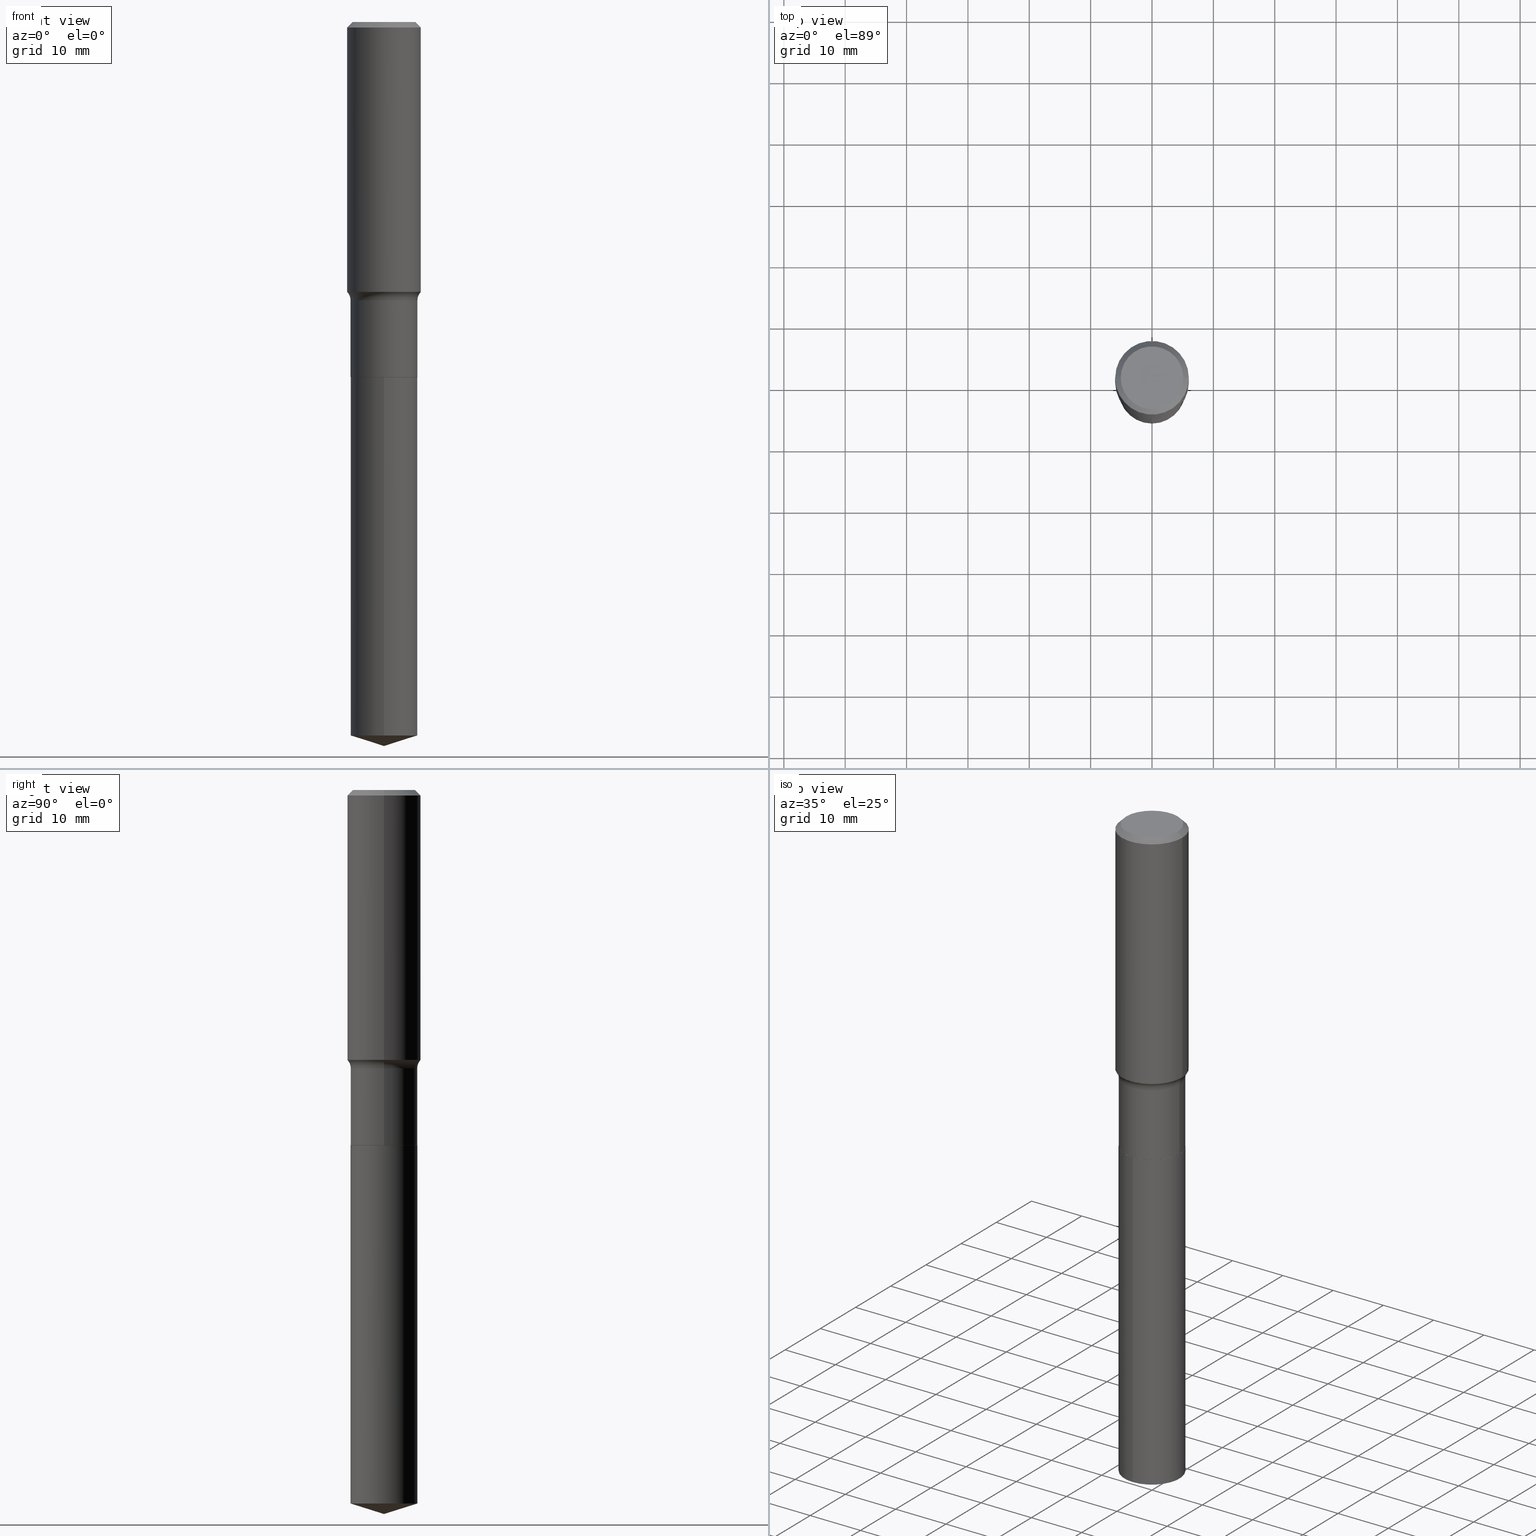
[diagram: canonical four-view strip — front | top / right | iso, engineering-drawing reading convention]
A machine part, canonical four-view strip (front | top / right | iso — engineering-drawing reading convention). The complete STEP part file that produces these views, byte-faithful:
ISO-10303-21;
HEADER;
FILE_DESCRIPTION (( 'STEP AP203' ),
    '1' );
FILE_NAME ('64183.STEP',
    '2024-04-19T15:30:27',
    ( '' ),
    ( '' ),
    'SwSTEP 2.0',
    'SolidWorks 2023',
    '' );
FILE_SCHEMA (( 'CONFIG_CONTROL_DESIGN' ));
ENDSEC;

DATA;
#1 = VECTOR ( 'NONE', #371, 39.37007874015748143 ) ;
#2 = LOCAL_TIME ( 11, 30, 27.00000000000000000, #7 ) ;
#3 = CARTESIAN_POINT ( 'NONE',  ( 0.2145499999999999630, -1.498194642497588202E-15, 1.046183727247017934E-29 ) ) ;
#4 = DIRECTION ( 'NONE',  ( 0.7071067811866199593, -2.468850131083015945E-15, 0.7071067811864750752 ) ) ;
#5 = VERTEX_POINT ( 'NONE', #217 ) ;
#6 = CARTESIAN_POINT ( 'NONE',  ( -1.498194642497532588E-15, -0.2145500000000079566, -2.279499999999998749 ) ) ;
#7 = COORDINATED_UNIVERSAL_TIME_OFFSET ( 5, 0, .BEHIND. ) ;
#8 = ORIENTED_EDGE ( 'NONE', *, *, #400, .T. ) ;
#9 = EDGE_CURVE ( 'NONE', #457, #191, #365, .T. ) ;
#10 = CARTESIAN_POINT ( 'NONE',  ( 0.000000000000000000, 0.000000000000000000, 0.000000000000000000 ) ) ;
#11 = PERSON_AND_ORGANIZATION ( #186, #308 ) ;
#12 = CARTESIAN_POINT ( 'NONE',  ( -5.008488096090115757E-47, 7.150793614331959538E-33, 2.048068690724057264E-18 ) ) ;
#13 = AXIS2_PLACEMENT_3D ( 'NONE', #483, #258, #450 ) ;
#14 = CC_DESIGN_PERSON_AND_ORGANIZATION_ASSIGNMENT ( #246, #91, ( #361 ) ) ;
#15 = CARTESIAN_POINT ( 'NONE',  ( 0.2925499999999999212, -8.278651402530973712E-15, -1.785999999999999366 ) ) ;
#16 =( NAMED_UNIT ( * ) SI_UNIT ( $, .STERADIAN. ) SOLID_ANGLE_UNIT ( ) );
#17 = EDGE_CURVE ( 'NONE', #476, #191, #239, .T. ) ;
#18 = FACE_OUTER_BOUND ( 'NONE', #418, .T. ) ;
#19 = AXIS2_PLACEMENT_3D ( 'NONE', #404, #68, #107 ) ;
#20 = CONICAL_SURFACE ( 'NONE', #301, 124.8659371009152892, 1.265363707695892126 ) ;
#21 = ORIENTED_EDGE ( 'NONE', *, *, #167, .F. ) ;
#22 = DIRECTION ( 'NONE',  ( -2.438088387897960049E-29, 3.491481338843145188E-15, 1.000000000000000000 ) ) ;
#23 = CARTESIAN_POINT ( 'NONE',  ( -0.2145499999999999907, -5.571966381625396973E-15, -2.278999999999999471 ) ) ;
#24 = VECTOR ( 'NONE', #307, 39.37007874015748143 ) ;
#25 = ORIENTED_EDGE ( 'NONE', *, *, #355, .T. ) ;
#26 = CC_DESIGN_APPROVAL ( #261, ( #202 ) ) ;
#27 = DIRECTION ( 'NONE',  ( 0.000000000000000000, 0.000000000000000000, 1.000000000000000000 ) ) ;
#28 = CARTESIAN_POINT ( 'NONE',  ( -1.498194642497532588E-15, -0.2145500000000079566, -2.279499999999998749 ) ) ;
#29 = DIRECTION ( 'NONE',  ( -1.000000000000000000, 6.982962677686266711E-15, 0.000000000000000000 ) ) ;
#30 = ADVANCED_FACE ( 'NONE', ( #256 ), #359, .T. ) ;
#31 = CARTESIAN_POINT ( 'NONE',  ( 5.574446143699018056E-29, -7.958831711892947948E-15, -2.279499999999999638 ) ) ;
#32 = ORIENTED_EDGE ( 'NONE', *, *, #65, .T. ) ;
#33 = EDGE_LOOP ( 'NONE', ( #77, #45, #8, #121 ) ) ;
#34 = LINE ( 'NONE', #332, #43 ) ;
#35 = ORIENTED_EDGE ( 'NONE', *, *, #252, .F. ) ;
#36 = FACE_OUTER_BOUND ( 'NONE', #334, .T. ) ;
#37 = VERTEX_POINT ( 'NONE', #196 ) ;
#38 = DIRECTION ( 'NONE',  ( -6.982962677686266711E-15, -1.000000000000000000, 2.546584007144500745E-15 ) ) ;
#39 = CC_DESIGN_PERSON_AND_ORGANIZATION_ASSIGNMENT ( #381, #346, ( #342 ) ) ;
#40 = ORIENTED_EDGE ( 'NONE', *, *, #355, .F. ) ;
#41 = DIRECTION ( 'NONE',  ( 1.000000000000000000, -6.982962677686269077E-15, 0.000000000000000000 ) ) ;
#42 = ORIENTED_EDGE ( 'NONE', *, *, #235, .T. ) ;
#43 = VECTOR ( 'NONE', #265, 39.37007874015748143 ) ;
#44 = DIRECTION ( 'NONE',  ( 2.438088387897960049E-29, -3.491481338843145188E-15, -1.000000000000000000 ) ) ;
#45 = ORIENTED_EDGE ( 'NONE', *, *, #65, .F. ) ;
#46 = DATE_TIME_ROLE ( 'creation_date' ) ;
#47 = EDGE_LOOP ( 'NONE', ( #232, #384, #379 ) ) ;
#48 = EDGE_CURVE ( 'NONE', #344, #83, #322, .T. ) ;
#49 = ADVANCED_FACE ( 'NONE', ( #53 ), #286, .F. ) ;
#50 = FACE_OUTER_BOUND ( 'NONE', #425, .T. ) ;
#51 = CC_DESIGN_PERSON_AND_ORGANIZATION_ASSIGNMENT ( #11, #93, ( #361 ) ) ;
#52 = DIRECTION ( 'NONE',  ( 1.000000000000000000, -6.982962677686265133E-15, 4.883557194083111780E-29 ) ) ;
#53 = FACE_OUTER_BOUND ( 'NONE', #402, .T. ) ;
#54 = FACE_OUTER_BOUND ( 'NONE', #125, .T. ) ;
#55 = AXIS2_PLACEMENT_3D ( 'NONE', #139, #22, #175 ) ;
#56 = AXIS2_PLACEMENT_3D ( 'NONE', #10, #90, #284 ) ;
#57 = APPROVAL_ROLE ( '' ) ;
#58 = CARTESIAN_POINT ( 'NONE',  ( 0.2140499999999999903, -9.453534873051693735E-15, -2.279499999999999638 ) ) ;
#59 = CARTESIAN_POINT ( 'NONE',  ( 5.574446143699018056E-29, -7.958831711892947948E-15, -2.279499999999999638 ) ) ;
#60 = DIRECTION ( 'NONE',  ( 1.000000000000000000, -6.982962677686266711E-15, 0.000000000000000000 ) ) ;
#61 = ADVANCED_FACE ( 'NONE', ( #287 ), #433, .T. ) ;
#62 = CARTESIAN_POINT ( 'NONE',  ( 0.000000000000000000, 0.000000000000000000, 0.000000000000000000 ) ) ;
#63 = CARTESIAN_POINT ( 'NONE',  ( 0.2145499999999999907, -9.455280613721116027E-15, -2.278999999999999471 ) ) ;
#64 = AXIS2_PLACEMENT_3D ( 'NONE', #164, #129, #281 ) ;
#65 = EDGE_CURVE ( 'NONE', #37, #476, #214, .T. ) ;
#66 = DIRECTION ( 'NONE',  ( -6.659769872151632089E-15, -0.9537169507482267106, 0.3007057995042733411 ) ) ;
#67 = ORIENTED_EDGE ( 'NONE', *, *, #144, .F. ) ;
#68 = DIRECTION ( 'NONE',  ( 7.105427357601001859E-15, 1.000000000000000000, -3.491481338843145583E-15 ) ) ;
#69 = DIRECTION ( 'NONE',  ( 1.000000000000000000, 0.000000000000000000, 0.000000000000000000 ) ) ;
#70 = CARTESIAN_POINT ( 'NONE',  ( 4.367607287846652814E-29, -6.235785671173856083E-15, -1.785999999999999366 ) ) ;
#71 = DIRECTION ( 'NONE',  ( 2.445468806185136597E-29, -3.491481338843145583E-15, -1.000000000000000000 ) ) ;
#72 = CC_DESIGN_APPROVAL ( #250, ( #361 ) ) ;
#73 = DIRECTION ( 'NONE',  ( -2.445468806185136597E-29, 3.491481338843145583E-15, 1.000000000000000000 ) ) ;
#74 = DIRECTION ( 'NONE',  ( -2.445499818882155207E-29, 3.491436926895881594E-15, 1.000000000000000000 ) ) ;
#75 = VERTEX_POINT ( 'NONE', #255 ) ;
#76 = CARTESIAN_POINT ( 'NONE',  ( 0.2007700000000000040, -1.560767496960719672E-15, 4.096137381458473721E-18 ) ) ;
#77 = ORIENTED_EDGE ( 'NONE', *, *, #17, .F. ) ;
#78 = EDGE_CURVE ( 'NONE', #422, #75, #110, .T. ) ;
#79 = FACE_OUTER_BOUND ( 'NONE', #33, .T. ) ;
#80 = EDGE_LOOP ( 'NONE', ( #185, #420, #42, #314 ) ) ;
#81 = CARTESIAN_POINT ( 'NONE',  ( 5.573223409295925255E-29, -7.957085971223527233E-15, -2.278999999999999471 ) ) ;
#82 = PERSON_AND_ORGANIZATION ( #186, #308 ) ;
#83 = VERTEX_POINT ( 'NONE', #63 ) ;
#84 = FACE_OUTER_BOUND ( 'NONE', #480, .T. ) ;
#85 = ORIENTED_EDGE ( 'NONE', *, *, #97, .T. ) ;
#86 = COORDINATED_UNIVERSAL_TIME_OFFSET ( 5, 0, .BEHIND. ) ;
#87 = ORIENTED_EDGE ( 'NONE', *, *, #97, .F. ) ;
#88 = DIRECTION ( 'NONE',  ( -2.445499818882154926E-29, 3.491436926895881594E-15, 1.000000000000000000 ) ) ;
#89 = APPROVAL_DATE_TIME ( #429, #250 ) ;
#90 = DIRECTION ( 'NONE',  ( -2.445468806185136597E-29, 3.491481338843145583E-15, 1.000000000000000000 ) ) ;
#91 = PERSON_AND_ORGANIZATION_ROLE ( 'design_supplier' ) ;
#92 = LINE ( 'NONE', #276, #377 ) ;
#93 = PERSON_AND_ORGANIZATION_ROLE ( 'creator' ) ;
#94 = ORIENTED_EDGE ( 'NONE', *, *, #294, .F. ) ;
#95 = AXIS2_PLACEMENT_3D ( 'NONE', #146, #73, #231 ) ;
#96 = VECTOR ( 'NONE', #168, 39.37007874015748143 ) ;
#97 = EDGE_CURVE ( 'NONE', #344, #230, #331, .T. ) ;
#98 = AXIS2_PLACEMENT_3D ( 'NONE', #357, #212, #176 ) ;
#99 = ORIENTED_EDGE ( 'NONE', *, *, #235, .F. ) ;
#100 = ADVANCED_FACE ( 'NONE', ( #18 ), #475, .F. ) ;
#101 = AXIS2_PLACEMENT_3D ( 'NONE', #299, #120, #38 ) ;
#102 = CIRCLE ( 'NONE', #385, 0.2362000000000002431 ) ;
#103 = EDGE_CURVE ( 'NONE', #476, #422, #487, .T. ) ;
#104 =( CONVERSION_BASED_UNIT ( 'INCH', #436 ) LENGTH_UNIT ( ) NAMED_UNIT ( #270 ) );
#105 = ADVANCED_BREP_SHAPE_REPRESENTATION ( '64183', ( #137, #447, #155 ), #416 ) ;
#106 = APPLICATION_PROTOCOL_DEFINITION ( 'international standard', 'config_control_design', 1994, #233 ) ;
#107 = DIRECTION ( 'NONE',  ( -1.000000000000000000, 7.105427357600997914E-15, 0.000000000000000000 ) ) ;
#108 = DIRECTION ( 'NONE',  ( 1.000000000000000000, -6.982962677686265133E-15, 4.883557194083111780E-29 ) ) ;
#109 = CC_DESIGN_DATE_AND_TIME_ASSIGNMENT ( #132, #46, ( #202 ) ) ;
#110 = CIRCLE ( 'NONE', #323, 0.2361999999999999933 ) ;
#111 = VECTOR ( 'NONE', #340, 39.37007874015748143 ) ;
#112 = FACE_OUTER_BOUND ( 'NONE', #267, .T. ) ;
#113 = CARTESIAN_POINT ( 'NONE',  ( 5.574446143699018056E-29, -7.958831711892947948E-15, -2.279499999999999638 ) ) ;
#114 = EDGE_LOOP ( 'NONE', ( #32, #151, #453, #21 ) ) ;
#115 = EDGE_CURVE ( 'NONE', #264, #274, #141, .T. ) ;
#116 = DIRECTION ( 'NONE',  ( -2.445499818882155207E-29, 3.491436926895881594E-15, 1.000000000000000000 ) ) ;
#117 = VERTEX_POINT ( 'NONE', #76 ) ;
#118 = VECTOR ( 'NONE', #224, 39.37007874015748143 ) ;
#119 = AXIS2_PLACEMENT_3D ( 'NONE', #241, #388, #392 ) ;
#120 = DIRECTION ( 'NONE',  ( -2.445499818882155207E-29, 3.491436926895881594E-15, 1.000000000000000000 ) ) ;
#121 = ORIENTED_EDGE ( 'NONE', *, *, #180, .T. ) ;
#122 = EDGE_CURVE ( 'NONE', #230, #344, #189, .T. ) ;
#123 = CYLINDRICAL_SURFACE ( 'NONE', #119, 0.2362000000000001321 ) ;
#124 = DIRECTION ( 'NONE',  ( 1.000000000000000000, -6.982962677686265922E-15, 0.000000000000000000 ) ) ;
#125 = EDGE_LOOP ( 'NONE', ( #35, #310, #262, #464 ) ) ;
#126 = DIRECTION ( 'NONE',  ( -6.982962677686266711E-15, -1.000000000000000000, 2.546584007144500745E-15 ) ) ;
#127 = CALENDAR_DATE ( 2024, 19, 4 ) ;
#128 = AXIS2_PLACEMENT_3D ( 'NONE', #469, #131, #234 ) ;
#129 = DIRECTION ( 'NONE',  ( -2.445499818882155207E-29, 3.491436926895881594E-15, 1.000000000000000000 ) ) ;
#130 = APPROVAL_STATUS ( 'not_yet_approved' ) ;
#131 = DIRECTION ( 'NONE',  ( -2.445499818882155207E-29, 3.491436926895881594E-15, 1.000000000000000000 ) ) ;
#132 = DATE_AND_TIME ( #162, #223 ) ;
#133 = ORIENTED_EDGE ( 'NONE', *, *, #424, .F. ) ;
#134 = EDGE_CURVE ( 'NONE', #456, #422, #303, .T. ) ;
#135 =( NAMED_UNIT ( * ) PLANE_ANGLE_UNIT ( ) SI_UNIT ( $, .RADIAN. ) );
#136 = DIRECTION ( 'NONE',  ( 6.982962677686265922E-15, 1.000000000000000000, -3.491436926895881594E-15 ) ) ;
#137 = MANIFOLD_SOLID_BREP ( 'Body-Move/Copy2[1]', #352 ) ;
#138 = ORIENTED_EDGE ( 'NONE', *, *, #360, .T. ) ;
#139 = CARTESIAN_POINT ( 'NONE',  ( 5.574446143699018056E-29, -7.958831711892947948E-15, -2.279499999999999638 ) ) ;
#140 = EDGE_CURVE ( 'NONE', #247, #184, #374, .T. ) ;
#141 = CIRCLE ( 'NONE', #101, 0.2145499999999999907 ) ;
#142 = VECTOR ( 'NONE', #156, 39.37007874015748143 ) ;
#143 = EDGE_LOOP ( 'NONE', ( #85, #382, #67, #271 ) ) ;
#144 = EDGE_CURVE ( 'NONE', #83, #457, #477, .T. ) ;
#145 = CARTESIAN_POINT ( 'NONE',  ( 1.119555622036104611E-28, -1.598408329452252082E-14, -4.578052644846014374 ) ) ;
#146 = CARTESIAN_POINT ( 'NONE',  ( 4.367607287846652814E-29, -6.235785671173856083E-15, -1.785999999999999366 ) ) ;
#147 = DIRECTION ( 'NONE',  ( 1.000000000000000000, -6.982962677686266711E-15, 0.000000000000000000 ) ) ;
#148 = ORIENTED_EDGE ( 'NONE', *, *, #122, .T. ) ;
#149 = UNCERTAINTY_MEASURE_WITH_UNIT (LENGTH_MEASURE( 1.000000000000000082E-05 ), #104, 'distance_accuracy_value', 'NONE');
#150 = CARTESIAN_POINT ( 'NONE',  ( 0.2361999999999999933, -1.744152810908849053E-15, -0.03543000000000021826 ) ) ;
#151 = ORIENTED_EDGE ( 'NONE', *, *, #103, .T. ) ;
#152 = DIRECTION ( 'NONE',  ( -2.445468806185136597E-29, 3.491481338843145583E-15, 1.000000000000000000 ) ) ;
#153 = CIRCLE ( 'NONE', #434, 0.2007700000000000040 ) ;
#154 = ORIENTED_EDGE ( 'NONE', *, *, #140, .T. ) ;
#155 = AXIS2_PLACEMENT_3D ( 'NONE', #62, #27, #69 ) ;
#156 = DIRECTION ( 'NONE',  ( -2.445468806185136877E-29, 3.491481338843145188E-15, 1.000000000000000000 ) ) ;
#157 = APPROVAL_ROLE ( '' ) ;
#158 = DIRECTION ( 'NONE',  ( 1.000000000000000000, -6.982962677686266711E-15, 4.876176775795936353E-29 ) ) ;
#159 = ORIENTED_EDGE ( 'NONE', *, *, #329, .T. ) ;
#160 = APPROVAL ( #391, 'UNSPECIFIED' ) ;
#161 = CARTESIAN_POINT ( 'NONE',  ( 0.2140499999999999903, -9.453534873051693735E-15, -2.279499999999999638 ) ) ;
#162 = CALENDAR_DATE ( 2024, 19, 4 ) ;
#163 = VERTEX_POINT ( 'NONE', #225 ) ;
#164 = CARTESIAN_POINT ( 'NONE',  ( 5.574446143699018056E-29, -7.958831711892947948E-15, -2.279499999999999638 ) ) ;
#165 = CALENDAR_DATE ( 2024, 19, 4 ) ;
#166 = DIRECTION ( 'NONE',  ( -1.000000000000000000, 6.982962677686265922E-15, -4.876176775795935793E-29 ) ) ;
#167 = EDGE_CURVE ( 'NONE', #37, #75, #481, .T. ) ;
#168 = DIRECTION ( 'NONE',  ( -2.445499818882154926E-29, 3.491436926895881594E-15, 1.000000000000000000 ) ) ;
#169 = APPROVAL_DATE_TIME ( #282, #261 ) ;
#170 = CARTESIAN_POINT ( 'NONE',  ( 5.574446143699018056E-29, -7.958831711892947948E-15, -2.279499999999999638 ) ) ;
#171 = APPLICATION_PROTOCOL_DEFINITION ( 'international standard', 'config_control_design', 1994, #292 ) ;
#172 = CLOSED_SHELL ( 'NONE', ( #468, #30, #61, #364, #482, #290, #218, #348, #373, #375, #100, #193 ) ) ;
#173 = AXIS2_PLACEMENT_3D ( 'NONE', #15, #470, #269 ) ;
#174 = ADVANCED_FACE ( 'NONE', ( #413 ), #195, .T. ) ;
#175 = DIRECTION ( 'NONE',  ( 1.000000000000000000, -6.982962677686265922E-15, 4.876176775795935793E-29 ) ) ;
#176 = DIRECTION ( 'NONE',  ( 1.000000000000000000, -6.982962677686266711E-15, 4.876176775795936353E-29 ) ) ;
#177 = CARTESIAN_POINT ( 'NONE',  ( -0.2007700000000000040, 1.463821008716677338E-15, 4.096137381438094301E-18 ) ) ;
#178 = AXIS2_PLACEMENT_3D ( 'NONE', #444, #491, #410 ) ;
#179 = CIRCLE ( 'NONE', #215, 0.2145499999999999907 ) ;
#180 = EDGE_CURVE ( 'NONE', #5, #191, #209, .T. ) ;
#181 = MECHANICAL_CONTEXT ( 'NONE', #292, 'mechanical' ) ;
#182 = DIRECTION ( 'NONE',  ( -2.445499818882155207E-29, 3.491436926895881594E-15, 1.000000000000000000 ) ) ;
#183 = CARTESIAN_POINT ( 'NONE',  ( -0.2362000000000001321, 1.678301941865357577E-15, -1.161852468318209457E-29 ) ) ;
#184 = VERTEX_POINT ( 'NONE', #300 ) ;
#185 = ORIENTED_EDGE ( 'NONE', *, *, #277, .F. ) ;
#186 = PERSON ( 'UNSPECIFIED', 'UNSPECIFIED', 'UNSPECIFIED', ('UNSPECIFIED'), ('UNSPECIFIED'), ('UNSPECIFIED') ) ;
#187 = EDGE_CURVE ( 'NONE', #456, #117, #153, .T. ) ;
#188 = CYLINDRICAL_SURFACE ( 'NONE', #409, 0.2145499999999999907 ) ;
#189 = CIRCLE ( 'NONE', #248, 0.2140499999999999903 ) ;
#190 = APPROVAL_PERSON_ORGANIZATION ( #423, #160, #157 ) ;
#191 = VERTEX_POINT ( 'NONE', #415 ) ;
#192 = DIRECTION ( 'NONE',  ( -2.445468806185136597E-29, 3.491481338843145583E-15, 1.000000000000000000 ) ) ;
#193 = ADVANCED_FACE ( 'NONE', ( #36 ), #221, .T. ) ;
#194 = ORIENTED_EDGE ( 'NONE', *, *, #294, .T. ) ;
#195 = CYLINDRICAL_SURFACE ( 'NONE', #178, 0.2145499999999999907 ) ;
#196 = CARTESIAN_POINT ( 'NONE',  ( 0.2362000000000002709, -7.696858337813480014E-15, -1.732067843543947605 ) ) ;
#197 = ORIENTED_EDGE ( 'NONE', *, *, #430, .T. ) ;
#198 = LINE ( 'NONE', #3, #142 ) ;
#199 = CARTESIAN_POINT ( 'NONE',  ( 0.000000000000000000, 0.000000000000000000, 0.000000000000000000 ) ) ;
#200 = ORIENTED_EDGE ( 'NONE', *, *, #430, .F. ) ;
#201 = AXIS2_PLACEMENT_3D ( 'NONE', #70, #222, #368 ) ;
#202 = PRODUCT_DEFINITION ( 'UNKNOWN', '', #361, #219 ) ;
#203 = CARTESIAN_POINT ( 'NONE',  ( -8.491853261329332289E-28, 1.212378769598703238E-13, 34.72437874015748349 ) ) ;
#204 = DATE_TIME_ROLE ( 'classification_date' ) ;
#205 = ORIENTED_EDGE ( 'NONE', *, *, #458, .T. ) ;
#206 = CARTESIAN_POINT ( 'NONE',  ( -1.001697619218023151E-46, 1.430158722866391908E-32, 4.096137381448114529E-18 ) ) ;
#207 = CARTESIAN_POINT ( 'NONE',  ( 8.664295980313993487E-31, -1.237031838352134079E-16, -0.03543000000000021826 ) ) ;
#208 = DATE_AND_TIME ( #242, #440 ) ;
#209 = CIRCLE ( 'NONE', #95, 0.2145499999999999352 ) ;
#210 = APPROVAL_PERSON_ORGANIZATION ( #405, #261, #57 ) ;
#211 = DIRECTION ( 'NONE',  ( -1.000000000000000000, 6.982962677686266711E-15, 0.000000000000000000 ) ) ;
#212 = DIRECTION ( 'NONE',  ( -2.445468806185136597E-29, 3.491481338843145583E-15, 1.000000000000000000 ) ) ;
#213 = CC_DESIGN_DATE_AND_TIME_ASSIGNMENT ( #285, #204, ( #342 ) ) ;
#214 = CIRCLE ( 'NONE', #279, 0.2362000000000002431 ) ;
#215 = AXIS2_PLACEMENT_3D ( 'NONE', #145, #182, #126 ) ;
#216 = DIRECTION ( 'NONE',  ( -2.445468806185136597E-29, 3.491481338843145583E-15, 1.000000000000000000 ) ) ;
#217 = CARTESIAN_POINT ( 'NONE',  ( 0.2145499999999999352, -7.733980313671444089E-15, -1.785999999999999366 ) ) ;
#218 = ADVANCED_FACE ( 'NONE', ( #79 ), #341, .F. ) ;
#219 = DESIGN_CONTEXT ( 'detailed design', #233, 'design' ) ;
#220 = APPROVAL_STATUS ( 'not_yet_approved' ) ;
#221 = CONICAL_SURFACE ( 'NONE', #288, 0.2140499999999999903, 0.7853981633975507526 ) ;
#222 = DIRECTION ( 'NONE',  ( -2.445468806185136597E-29, 3.491481338843145583E-15, 1.000000000000000000 ) ) ;
#223 = LOCAL_TIME ( 11, 30, 27.00000000000000000, #86 ) ;
#224 = DIRECTION ( 'NONE',  ( -2.445468806185136877E-29, 3.491481338843145188E-15, 1.000000000000000000 ) ) ;
#225 = CARTESIAN_POINT ( 'NONE',  ( 1.136105850858082879E-28, -1.622016853128019712E-14, -4.645699999999999719 ) ) ;
#226 = ORIENTED_EDGE ( 'NONE', *, *, #115, .T. ) ;
#227 = ADVANCED_FACE ( 'NONE', ( #112 ), #188, .T. ) ;
#228 = DIRECTION ( 'NONE',  ( -6.982962677686266711E-15, -1.000000000000000000, 3.819876010716751118E-15 ) ) ;
#229 = AXIS2_PLACEMENT_3D ( 'NONE', #207, #421, #211 ) ;
#230 = VERTEX_POINT ( 'NONE', #338 ) ;
#231 = DIRECTION ( 'NONE',  ( 1.000000000000000000, -6.982962677686266711E-15, 0.000000000000000000 ) ) ;
#232 = ORIENTED_EDGE ( 'NONE', *, *, #458, .F. ) ;
#233 = APPLICATION_CONTEXT ( 'configuration controlled 3d designs of mechanical parts and assemblies' ) ;
#234 = DIRECTION ( 'NONE',  ( -6.982962677686265133E-15, -1.000000000000000000, 3.500519750498698121E-15 ) ) ;
#235 = EDGE_CURVE ( 'NONE', #191, #5, #295, .T. ) ;
#236 = ORIENTED_EDGE ( 'NONE', *, *, #103, .F. ) ;
#237 = CARTESIAN_POINT ( 'NONE',  ( 4.367607287846652814E-29, -6.235785671173856083E-15, -1.785999999999999366 ) ) ;
#238 = ORIENTED_EDGE ( 'NONE', *, *, #277, .T. ) ;
#239 = CIRCLE ( 'NONE', #19, 0.07800000000000006928 ) ;
#240 = EDGE_LOOP ( 'NONE', ( #40, #318, #159, #306 ) ) ;
#241 = CARTESIAN_POINT ( 'NONE',  ( 0.000000000000000000, 0.000000000000000000, 0.000000000000000000 ) ) ;
#242 = CALENDAR_DATE ( 2024, 19, 4 ) ;
#243 = DIRECTION ( 'NONE',  ( 1.000000000000000000, -6.982962677686266711E-15, 0.000000000000000000 ) ) ;
#244 = CALENDAR_DATE ( 2024, 19, 4 ) ;
#245 = FACE_OUTER_BOUND ( 'NONE', #484, .T. ) ;
#246 = PERSON_AND_ORGANIZATION ( #186, #308 ) ;
#247 = VERTEX_POINT ( 'NONE', #28 ) ;
#248 = AXIS2_PLACEMENT_3D ( 'NONE', #370, #330, #147 ) ;
#249 = AXIS2_PLACEMENT_3D ( 'NONE', #237, #390, #52 ) ;
#250 = APPROVAL ( #130, 'UNSPECIFIED' ) ;
#251 = AXIS2_PLACEMENT_3D ( 'NONE', #59, #356, #397 ) ;
#252 = EDGE_CURVE ( 'NONE', #117, #75, #305, .T. ) ;
#253 = ORIENTED_EDGE ( 'NONE', *, *, #180, .F. ) ;
#254 = PERSON_AND_ORGANIZATION ( #186, #308 ) ;
#255 = CARTESIAN_POINT ( 'NONE',  ( 0.2361999999999999933, -1.773078968304709514E-15, -0.03543000000000021826 ) ) ;
#256 = FACE_OUTER_BOUND ( 'NONE', #240, .T. ) ;
#257 = EDGE_CURVE ( 'NONE', #163, #274, #34, .T. ) ;
#258 = DIRECTION ( 'NONE',  ( -2.445468806185136597E-29, 3.491481338843145583E-15, 1.000000000000000000 ) ) ;
#259 = CONICAL_SURFACE ( 'NONE', #229, 0.2361999999999999933, 0.7853981633974452814 ) ;
#260 = CARTESIAN_POINT ( 'NONE',  ( 5.574446143699018056E-29, -7.958831711892947948E-15, -2.279499999999999638 ) ) ;
#261 = APPROVAL ( #220, 'UNSPECIFIED' ) ;
#262 = ORIENTED_EDGE ( 'NONE', *, *, #134, .T. ) ;
#263 = CARTESIAN_POINT ( 'NONE',  ( 0.2362000000000001321, -1.649375784469497117E-15, 1.151752954443000789E-29 ) ) ;
#264 = VERTEX_POINT ( 'NONE', #452 ) ;
#265 = DIRECTION ( 'NONE',  ( 6.776566513254257349E-15, 0.9537169507482289310, 0.3007057995042667353 ) ) ;
#266 = AXIS2_PLACEMENT_3D ( 'NONE', #206, #349, #321 ) ;
#267 = EDGE_LOOP ( 'NONE', ( #327, #461, #194, #347 ) ) ;
#268 = EDGE_CURVE ( 'NONE', #274, #264, #179, .T. ) ;
#269 = DIRECTION ( 'NONE',  ( 1.000000000000000000, -6.982962677686251722E-15, 0.000000000000000000 ) ) ;
#270 = DIMENSIONAL_EXPONENTS ( 1.000000000000000000, 0.000000000000000000, 0.000000000000000000, 0.000000000000000000, 0.000000000000000000, 0.000000000000000000, 0.000000000000000000 ) ;
#271 = ORIENTED_EDGE ( 'NONE', *, *, #48, .F. ) ;
#272 = PRODUCT ( '64183', '64183', '', ( #181 ) ) ;
#273 = FACE_OUTER_BOUND ( 'NONE', #80, .T. ) ;
#274 = VERTEX_POINT ( 'NONE', #351 ) ;
#275 = ORIENTED_EDGE ( 'NONE', *, *, #78, .F. ) ;
#276 = CARTESIAN_POINT ( 'NONE',  ( 1.524469439573350498E-15, 0.2145499999999920526, -2.279500000000000526 ) ) ;
#277 = EDGE_CURVE ( 'NONE', #476, #37, #102, .T. ) ;
#278 = SECURITY_CLASSIFICATION_LEVEL ( 'unclassified' ) ;
#279 = AXIS2_PLACEMENT_3D ( 'NONE', #313, #460, #124 ) ;
#280 = CIRCLE ( 'NONE', #64, 0.2145499999999999907 ) ;
#281 = DIRECTION ( 'NONE',  ( -6.982962677686266711E-15, -1.000000000000000000, 3.819876010716751118E-15 ) ) ;
#282 = DATE_AND_TIME ( #165, #289 ) ;
#283 = CC_DESIGN_PERSON_AND_ORGANIZATION_ASSIGNMENT ( #463, #312, ( #202 ) ) ;
#284 = DIRECTION ( 'NONE',  ( 1.000000000000000000, -6.982962677686266711E-15, 4.876176775795936353E-29 ) ) ;
#285 = DATE_AND_TIME ( #244, #479 ) ;
#286 = PLANE ( 'NONE',  #408 ) ;
#287 = FACE_OUTER_BOUND ( 'NONE', #114, .T. ) ;
#288 = AXIS2_PLACEMENT_3D ( 'NONE', #31, #192, #449 ) ;
#289 = LOCAL_TIME ( 11, 30, 27.00000000000000000, #354 ) ;
#290 = ADVANCED_FACE ( 'NONE', ( #50 ), #319, .T. ) ;
#291 = CARTESIAN_POINT ( 'NONE',  ( 8.664295980313993487E-31, -1.237031838352134079E-16, -0.03543000000000021826 ) ) ;
#292 = APPLICATION_CONTEXT ( 'configuration controlled 3d designs of mechanical parts and assemblies' ) ;
#293 = LINE ( 'NONE', #441, #435 ) ;
#294 = EDGE_CURVE ( 'NONE', #264, #247, #383, .T. ) ;
#295 = CIRCLE ( 'NONE', #201, 0.2145499999999999352 ) ;
#296 = CARTESIAN_POINT ( 'NONE',  ( -0.2145499999999999630, 1.524469439573294686E-15, -1.055357523614189967E-29 ) ) ;
#297 = DIRECTION ( 'NONE',  ( -2.445468806185136597E-29, 3.491481338843145583E-15, 1.000000000000000000 ) ) ;
#298 = ORIENTED_EDGE ( 'NONE', *, *, #48, .T. ) ;
#299 = CARTESIAN_POINT ( 'NONE',  ( 1.119555622036104611E-28, -1.598408329452252082E-14, -4.578052644846014374 ) ) ;
#300 = CARTESIAN_POINT ( 'NONE',  ( 1.524469439573407493E-15, 0.2145499999999920804, -2.279500000000000526 ) ) ;
#301 = AXIS2_PLACEMENT_3D ( 'NONE', #203, #432, #403 ) ;
#302 = EDGE_CURVE ( 'NONE', #230, #457, #462, .T. ) ;
#303 = LINE ( 'NONE', #328, #1 ) ;
#304 = ORIENTED_EDGE ( 'NONE', *, *, #144, .T. ) ;
#305 = LINE ( 'NONE', #150, #478 ) ;
#306 = ORIENTED_EDGE ( 'NONE', *, *, #134, .F. ) ;
#307 = DIRECTION ( 'NONE',  ( -2.445468806185136877E-29, 3.491481338843145188E-15, 1.000000000000000000 ) ) ;
#308 = ORGANIZATION ( 'UNSPECIFIED', 'UNSPECIFIED', '' ) ;
#309 = CIRCLE ( 'NONE', #446, 0.2145499999999999907 ) ;
#310 = ORIENTED_EDGE ( 'NONE', *, *, #187, .F. ) ;
#311 = FACE_OUTER_BOUND ( 'NONE', #438, .T. ) ;
#312 = PERSON_AND_ORGANIZATION_ROLE ( 'creator' ) ;
#313 = CARTESIAN_POINT ( 'NONE',  ( 4.235717881583081171E-29, -6.047482553343981911E-15, -1.732067843543947605 ) ) ;
#314 = ORIENTED_EDGE ( 'NONE', *, *, #400, .F. ) ;
#315 = PRODUCT_DEFINITION_SHAPE ( 'NONE', 'NONE',  #202 ) ;
#316 = DIRECTION ( 'NONE',  ( 1.000000000000000000, -6.982962677686265922E-15, 0.000000000000000000 ) ) ;
#317 = COORDINATED_UNIVERSAL_TIME_OFFSET ( 5, 0, .BEHIND. ) ;
#318 = ORIENTED_EDGE ( 'NONE', *, *, #252, .T. ) ;
#319 = CYLINDRICAL_SURFACE ( 'NONE', #56, 0.2145499999999999630 ) ;
#320 = FACE_OUTER_BOUND ( 'NONE', #47, .T. ) ;
#321 = DIRECTION ( 'NONE',  ( 1.000000000000000000, -6.982962677686266711E-15, 4.876140833081945105E-29 ) ) ;
#322 = LINE ( 'NONE', #58, #466 ) ;
#323 = AXIS2_PLACEMENT_3D ( 'NONE', #291, #297, #60 ) ;
#324 = CIRCLE ( 'NONE', #455, 0.2361999999999999933 ) ;
#325 = FACE_OUTER_BOUND ( 'NONE', #143, .T. ) ;
#326 = DIRECTION ( 'NONE',  ( 1.000000000000000000, -6.982962677686266711E-15, 0.000000000000000000 ) ) ;
#327 = ORIENTED_EDGE ( 'NONE', *, *, #336, .F. ) ;
#328 = CARTESIAN_POINT ( 'NONE',  ( -0.2361999999999999933, 1.525672600634282748E-15, -0.03543000000000021826 ) ) ;
#329 = EDGE_CURVE ( 'NONE', #75, #422, #324, .T. ) ;
#330 = DIRECTION ( 'NONE',  ( -2.445468806185136597E-29, 3.491481338843145583E-15, 1.000000000000000000 ) ) ;
#331 = CIRCLE ( 'NONE', #401, 0.2140499999999999903 ) ;
#332 = CARTESIAN_POINT ( 'NONE',  ( 1.136105974837692098E-28, -1.622016853128019712E-14, -4.645699999999999719 ) ) ;
#333 = AXIS2_PLACEMENT_3D ( 'NONE', #12, #44, #166 ) ;
#334 = EDGE_LOOP ( 'NONE', ( #339, #148, #298, #133 ) ) ;
#335 = DIRECTION ( 'NONE',  ( -6.982962677686266711E-15, -1.000000000000000000, 3.819876010716751118E-15 ) ) ;
#336 = EDGE_CURVE ( 'NONE', #274, #184, #92, .T. ) ;
#337 = ORIENTED_EDGE ( 'NONE', *, *, #9, .F. ) ;
#338 = CARTESIAN_POINT ( 'NONE',  ( -0.2140499999999999903, -6.435265758824343354E-15, -2.279499999999999638 ) ) ;
#339 = ORIENTED_EDGE ( 'NONE', *, *, #302, .F. ) ;
#340 = DIRECTION ( 'NONE',  ( -0.7071067811866199593, 7.493145998870616062E-15, 0.7071067811864750752 ) ) ;
#341 = TOROIDAL_SURFACE ( 'NONE', #486, 0.2925499999999999212, 0.07800000000000002764 ) ;
#342 = SECURITY_CLASSIFICATION ( '', '', #278 ) ;
#343 = DIRECTION ( 'NONE',  ( -2.445468806185136597E-29, 3.491481338843145583E-15, 1.000000000000000000 ) ) ;
#344 = VERTEX_POINT ( 'NONE', #161 ) ;
#345 = DIRECTION ( 'NONE',  ( -2.445468806185136597E-29, 3.491481338843145583E-15, 1.000000000000000000 ) ) ;
#346 = PERSON_AND_ORGANIZATION_ROLE ( 'classification_officer' ) ;
#347 = ORIENTED_EDGE ( 'NONE', *, *, #360, .F. ) ;
#348 = ADVANCED_FACE ( 'NONE', ( #245 ), #123, .T. ) ;
#349 = DIRECTION ( 'NONE',  ( -2.445468806185136597E-29, 3.491481338843145583E-15, 1.000000000000000000 ) ) ;
#350 = APPROVAL_ROLE ( '' ) ;
#351 = CARTESIAN_POINT ( 'NONE',  ( 1.524469439573406507E-15, 0.2145499999999839758, -4.578052644846015262 ) ) ;
#352 = CLOSED_SHELL ( 'NONE', ( #174, #387, #448, #227, #49 ) ) ;
#353 = PLANE ( 'NONE',  #333 ) ;
#354 = COORDINATED_UNIVERSAL_TIME_OFFSET ( 5, 0, .BEHIND. ) ;
#355 = EDGE_CURVE ( 'NONE', #117, #456, #439, .T. ) ;
#356 = DIRECTION ( 'NONE',  ( -2.445468806185136597E-29, 3.491481338843145583E-15, 1.000000000000000000 ) ) ;
#357 = CARTESIAN_POINT ( 'NONE',  ( 0.000000000000000000, 0.000000000000000000, 0.000000000000000000 ) ) ;
#358 = CARTESIAN_POINT ( 'NONE',  ( 5.574446143699018056E-29, -7.958831711892947948E-15, -2.279499999999999638 ) ) ;
#359 = CONICAL_SURFACE ( 'NONE', #366, 0.2361999999999999933, 0.7853981633974452814 ) ;
#360 = EDGE_CURVE ( 'NONE', #184, #247, #280, .T. ) ;
#361 = PRODUCT_DEFINITION_FORMATION_WITH_SPECIFIED_SOURCE ( 'ANY', '', #272, .NOT_KNOWN. ) ;
#362 = CARTESIAN_POINT ( 'NONE',  ( -0.2362000000000002709, -4.369180611478623939E-15, -1.732067843543947605 ) ) ;
#363 = FACE_OUTER_BOUND ( 'NONE', #414, .T. ) ;
#364 = ADVANCED_FACE ( 'NONE', ( #273 ), #472, .F. ) ;
#365 = LINE ( 'NONE', #296, #445 ) ;
#366 = AXIS2_PLACEMENT_3D ( 'NONE', #407, #71, #29 ) ;
#367 = CONICAL_SURFACE ( 'NONE', #128, 124.8659371009152892, 1.265363707695892126 ) ;
#368 = DIRECTION ( 'NONE',  ( 1.000000000000000000, -6.982962677686266711E-15, 0.000000000000000000 ) ) ;
#369 = CC_DESIGN_PERSON_AND_ORGANIZATION_ASSIGNMENT ( #254, #442, ( #272 ) ) ;
#370 = CARTESIAN_POINT ( 'NONE',  ( 5.574446143699018056E-29, -7.958831711892947948E-15, -2.279499999999999638 ) ) ;
#371 = DIRECTION ( 'NONE',  ( -0.7071067811865453523, 2.468850131082234184E-15, -0.7071067811865496822 ) ) ;
#372 = ORIENTED_EDGE ( 'NONE', *, *, #424, .T. ) ;
#373 = ADVANCED_FACE ( 'NONE', ( #54 ), #259, .T. ) ;
#374 = CIRCLE ( 'NONE', #394, 0.2145499999999999907 ) ;
#375 = ADVANCED_FACE ( 'NONE', ( #84 ), #353, .F. ) ;
#376 = CARTESIAN_POINT ( 'NONE',  ( -1.001697619218023151E-46, 1.430158722866391908E-32, 4.096137381448114529E-18 ) ) ;
#377 = VECTOR ( 'NONE', #88, 39.37007874015748143 ) ;
#378 = ORIENTED_EDGE ( 'NONE', *, *, #122, .F. ) ;
#379 = ORIENTED_EDGE ( 'NONE', *, *, #115, .F. ) ;
#380 = DIRECTION ( 'NONE',  ( -2.445468806185136597E-29, 3.491481338843145583E-15, 1.000000000000000000 ) ) ;
#381 = PERSON_AND_ORGANIZATION ( #186, #308 ) ;
#382 = ORIENTED_EDGE ( 'NONE', *, *, #302, .T. ) ;
#383 = LINE ( 'NONE', #6, #96 ) ;
#384 = ORIENTED_EDGE ( 'NONE', *, *, #257, .T. ) ;
#385 = AXIS2_PLACEMENT_3D ( 'NONE', #459, #345, #316 ) ;
#386 = EDGE_LOOP ( 'NONE', ( #226, #399, #492, #94 ) ) ;
#387 = ADVANCED_FACE ( 'NONE', ( #320 ), #367, .T. ) ;
#388 = DIRECTION ( 'NONE',  ( -2.445468806185136597E-29, 3.491481338843145583E-15, 1.000000000000000000 ) ) ;
#389 = APPROVAL_DATE_TIME ( #208, #160 ) ;
#390 = DIRECTION ( 'NONE',  ( -2.445468806185136597E-29, 3.491481338843145583E-15, 1.000000000000000000 ) ) ;
#391 = APPROVAL_STATUS ( 'not_yet_approved' ) ;
#392 = DIRECTION ( 'NONE',  ( 1.000000000000000000, -6.982962677686266711E-15, 4.876176775795936353E-29 ) ) ;
#393 = SHAPE_DEFINITION_REPRESENTATION ( #315, #105 ) ;
#394 = AXIS2_PLACEMENT_3D ( 'NONE', #113, #74, #228 ) ;
#395 = CIRCLE ( 'NONE', #173, 0.07800000000000006928 ) ;
#396 = CC_DESIGN_APPROVAL ( #160, ( #342 ) ) ;
#397 = DIRECTION ( 'NONE',  ( 1.000000000000000000, -6.982962677686266711E-15, 0.000000000000000000 ) ) ;
#398 =( LENGTH_UNIT ( ) NAMED_UNIT ( * ) SI_UNIT ( $, .METRE. ) );
#399 = ORIENTED_EDGE ( 'NONE', *, *, #336, .T. ) ;
#400 = EDGE_CURVE ( 'NONE', #37, #5, #395, .T. ) ;
#401 = AXIS2_PLACEMENT_3D ( 'NONE', #358, #216, #326 ) ;
#402 = EDGE_LOOP ( 'NONE', ( #154, #138 ) ) ;
#403 = DIRECTION ( 'NONE',  ( -6.982962677686265133E-15, -1.000000000000000000, 3.500519750498698121E-15 ) ) ;
#404 = CARTESIAN_POINT ( 'NONE',  ( -0.2925499999999999212, -4.157092897707683944E-15, -1.785999999999999366 ) ) ;
#405 = PERSON_AND_ORGANIZATION ( #186, #308 ) ;
#406 = CARTESIAN_POINT ( 'NONE',  ( 4.367607287846652814E-29, -6.235785671173856083E-15, -1.785999999999999366 ) ) ;
#407 = CARTESIAN_POINT ( 'NONE',  ( 8.664295980313993487E-31, -1.237031838352134079E-16, -0.03543000000000021826 ) ) ;
#408 = AXIS2_PLACEMENT_3D ( 'NONE', #170, #471, #136 ) ;
#409 = AXIS2_PLACEMENT_3D ( 'NONE', #260, #116, #335 ) ;
#410 = DIRECTION ( 'NONE',  ( -6.982962677686266711E-15, -1.000000000000000000, 3.819876010716751118E-15 ) ) ;
#411 = DIRECTION ( 'NONE',  ( 0.7071067811865453523, -7.319954787623248157E-15, -0.7071067811865496822 ) ) ;
#412 = ORIENTED_EDGE ( 'NONE', *, *, #257, .F. ) ;
#413 = FACE_OUTER_BOUND ( 'NONE', #386, .T. ) ;
#414 = EDGE_LOOP ( 'NONE', ( #304, #490, #253, #200 ) ) ;
#415 = CARTESIAN_POINT ( 'NONE',  ( -0.2145499999999999352, -5.571966381625397761E-15, -1.785999999999999366 ) ) ;
#416 =( GEOMETRIC_REPRESENTATION_CONTEXT ( 3 ) GLOBAL_UNCERTAINTY_ASSIGNED_CONTEXT ( ( #149 ) ) GLOBAL_UNIT_ASSIGNED_CONTEXT ( ( #104, #135, #16 ) ) REPRESENTATION_CONTEXT ( 'NONE', 'WORKASPACE' ) );
#417 = CC_DESIGN_SECURITY_CLASSIFICATION ( #342, ( #361 ) ) ;
#418 = EDGE_LOOP ( 'NONE', ( #87, #378 ) ) ;
#419 = CARTESIAN_POINT ( 'NONE',  ( -0.2361999999999999933, -1.407290926724239380E-15, -0.03543000000000021826 ) ) ;
#420 = ORIENTED_EDGE ( 'NONE', *, *, #17, .T. ) ;
#421 = DIRECTION ( 'NONE',  ( 2.445468806185136597E-29, -3.491481338843145583E-15, -1.000000000000000000 ) ) ;
#422 = VERTEX_POINT ( 'NONE', #419 ) ;
#423 = PERSON_AND_ORGANIZATION ( #186, #308 ) ;
#424 = EDGE_CURVE ( 'NONE', #457, #83, #309, .T. ) ;
#425 = EDGE_LOOP ( 'NONE', ( #337, #372, #197, #99 ) ) ;
#426 = DIRECTION ( 'NONE',  ( -2.445468806185136597E-29, 3.491481338843145583E-15, 1.000000000000000000 ) ) ;
#427 = APPROVAL_PERSON_ORGANIZATION ( #82, #250, #350 ) ;
#428 = COORDINATED_UNIVERSAL_TIME_OFFSET ( 5, 0, .BEHIND. ) ;
#429 = DATE_AND_TIME ( #127, #2 ) ;
#430 = EDGE_CURVE ( 'NONE', #83, #5, #198, .T. ) ;
#431 = CARTESIAN_POINT ( 'NONE',  ( -0.2140499999999999903, -6.437914985998453766E-15, -2.279499999999999638 ) ) ;
#432 = DIRECTION ( 'NONE',  ( -2.445499818882155207E-29, 3.491436926895881594E-15, 1.000000000000000000 ) ) ;
#433 = CYLINDRICAL_SURFACE ( 'NONE', #485, 0.2362000000000001321 ) ;
#434 = AXIS2_PLACEMENT_3D ( 'NONE', #376, #152, #454 ) ;
#435 = VECTOR ( 'NONE', #66, 39.37007874015748854 ) ;
#436 = LENGTH_MEASURE_WITH_UNIT ( LENGTH_MEASURE( 0.02539999999999999897 ), #398 );
#437 = PRODUCT_RELATED_PRODUCT_CATEGORY ( 'detail', '', ( #272 ) ) ;
#438 = EDGE_LOOP ( 'NONE', ( #412, #205, #451 ) ) ;
#439 = CIRCLE ( 'NONE', #266, 0.2007700000000000040 ) ;
#440 = LOCAL_TIME ( 11, 30, 27.00000000000000000, #317 ) ;
#441 = CARTESIAN_POINT ( 'NONE',  ( 1.136091712169512025E-28, -1.622037100534777204E-14, -4.645699999999999719 ) ) ;
#442 = PERSON_AND_ORGANIZATION_ROLE ( 'design_owner' ) ;
#443 = DIRECTION ( 'NONE',  ( -2.445468806185136877E-29, 3.491481338843145188E-15, 1.000000000000000000 ) ) ;
#444 = CARTESIAN_POINT ( 'NONE',  ( 5.574446143699018056E-29, -7.958831711892947948E-15, -2.279499999999999638 ) ) ;
#445 = VECTOR ( 'NONE', #443, 39.37007874015748143 ) ;
#446 = AXIS2_PLACEMENT_3D ( 'NONE', #81, #380, #41 ) ;
#447 = MANIFOLD_SOLID_BREP ( 'Body-Move/Copy2[2]', #172 ) ;
#448 = ADVANCED_FACE ( 'NONE', ( #311 ), #20, .T. ) ;
#449 = DIRECTION ( 'NONE',  ( 1.000000000000000000, -6.982962677686266711E-15, 0.000000000000000000 ) ) ;
#450 = DIRECTION ( 'NONE',  ( 1.000000000000000000, -6.982962677686269077E-15, 0.000000000000000000 ) ) ;
#451 = ORIENTED_EDGE ( 'NONE', *, *, #268, .F. ) ;
#452 = CARTESIAN_POINT ( 'NONE',  ( -1.498194642497476381E-15, -0.2145500000000159779, -4.578052644846013486 ) ) ;
#453 = ORIENTED_EDGE ( 'NONE', *, *, #329, .F. ) ;
#454 = DIRECTION ( 'NONE',  ( 1.000000000000000000, -6.982962677686266711E-15, 4.876140833081945105E-29 ) ) ;
#455 = AXIS2_PLACEMENT_3D ( 'NONE', #465, #426, #243 ) ;
#456 = VERTEX_POINT ( 'NONE', #177 ) ;
#457 = VERTEX_POINT ( 'NONE', #23 ) ;
#458 = EDGE_CURVE ( 'NONE', #163, #264, #293, .T. ) ;
#459 = CARTESIAN_POINT ( 'NONE',  ( 4.235717881583081171E-29, -6.047482553343981911E-15, -1.732067843543947605 ) ) ;
#460 = DIRECTION ( 'NONE',  ( -2.445468806185136597E-29, 3.491481338843145583E-15, 1.000000000000000000 ) ) ;
#461 = ORIENTED_EDGE ( 'NONE', *, *, #268, .T. ) ;
#462 = LINE ( 'NONE', #431, #111 ) ;
#463 = PERSON_AND_ORGANIZATION ( #186, #308 ) ;
#464 = ORIENTED_EDGE ( 'NONE', *, *, #78, .T. ) ;
#465 = CARTESIAN_POINT ( 'NONE',  ( 8.664295980313993487E-31, -1.237031838352134079E-16, -0.03543000000000021826 ) ) ;
#466 = VECTOR ( 'NONE', #4, 39.37007874015748143 ) ;
#467 = CONICAL_SURFACE ( 'NONE', #251, 0.2140499999999999903, 0.7853981633975507526 ) ;
#468 = ADVANCED_FACE ( 'NONE', ( #325 ), #467, .T. ) ;
#469 = CARTESIAN_POINT ( 'NONE',  ( -8.491853261329332289E-28, 1.212378769598703238E-13, 34.72437874015748349 ) ) ;
#470 = DIRECTION ( 'NONE',  ( -6.982962677686266711E-15, -1.000000000000000000, 3.491481338843145583E-15 ) ) ;
#471 = DIRECTION ( 'NONE',  ( 2.445499818882154926E-29, -3.491436926895881594E-15, -1.000000000000000000 ) ) ;
#472 = TOROIDAL_SURFACE ( 'NONE', #249, 0.2925499999999999212, 0.07800000000000002764 ) ;
#473 = ORIENTED_EDGE ( 'NONE', *, *, #187, .T. ) ;
#474 = CYLINDRICAL_SURFACE ( 'NONE', #98, 0.2145499999999999630 ) ;
#475 = PLANE ( 'NONE',  #55 ) ;
#476 = VERTEX_POINT ( 'NONE', #362 ) ;
#477 = CIRCLE ( 'NONE', #13, 0.2145499999999999907 ) ;
#478 = VECTOR ( 'NONE', #411, 39.37007874015748143 ) ;
#479 = LOCAL_TIME ( 11, 30, 27.00000000000000000, #428 ) ;
#480 = EDGE_LOOP ( 'NONE', ( #473, #25 ) ) ;
#481 = LINE ( 'NONE', #263, #24 ) ;
#482 = ADVANCED_FACE ( 'NONE', ( #363 ), #474, .T. ) ;
#483 = CARTESIAN_POINT ( 'NONE',  ( 5.573223409295925255E-29, -7.957085971223527233E-15, -2.278999999999999471 ) ) ;
#484 = EDGE_LOOP ( 'NONE', ( #236, #238, #488, #275 ) ) ;
#485 = AXIS2_PLACEMENT_3D ( 'NONE', #199, #343, #158 ) ;
#486 = AXIS2_PLACEMENT_3D ( 'NONE', #406, #489, #108 ) ;
#487 = LINE ( 'NONE', #183, #118 ) ;
#488 = ORIENTED_EDGE ( 'NONE', *, *, #167, .T. ) ;
#489 = DIRECTION ( 'NONE',  ( -2.445468806185136597E-29, 3.491481338843145583E-15, 1.000000000000000000 ) ) ;
#490 = ORIENTED_EDGE ( 'NONE', *, *, #9, .T. ) ;
#491 = DIRECTION ( 'NONE',  ( -2.445499818882155207E-29, 3.491436926895881594E-15, 1.000000000000000000 ) ) ;
#492 = ORIENTED_EDGE ( 'NONE', *, *, #140, .F. ) ;
ENDSEC;
END-ISO-10303-21;
